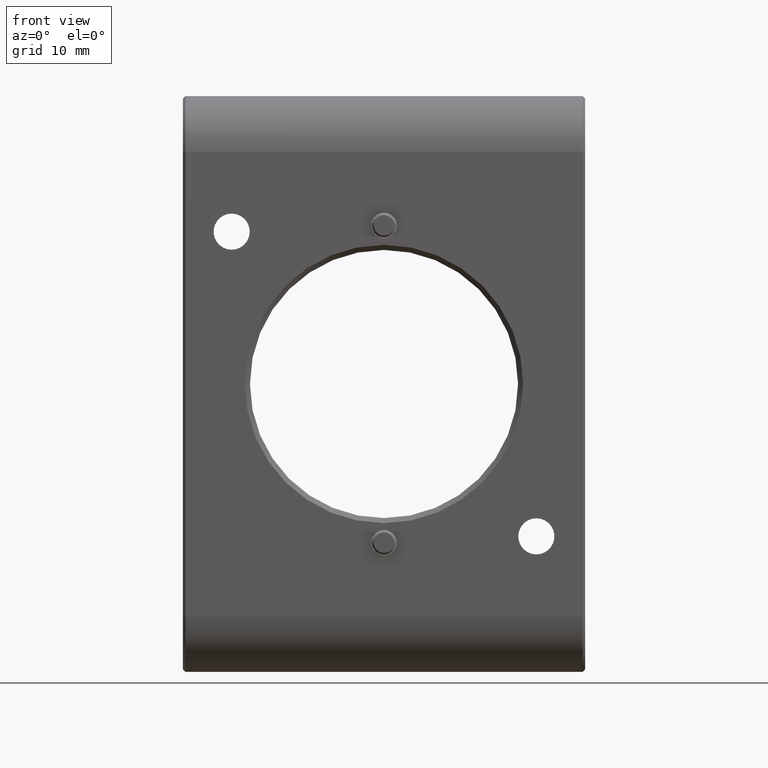
[diagram: clean part render]
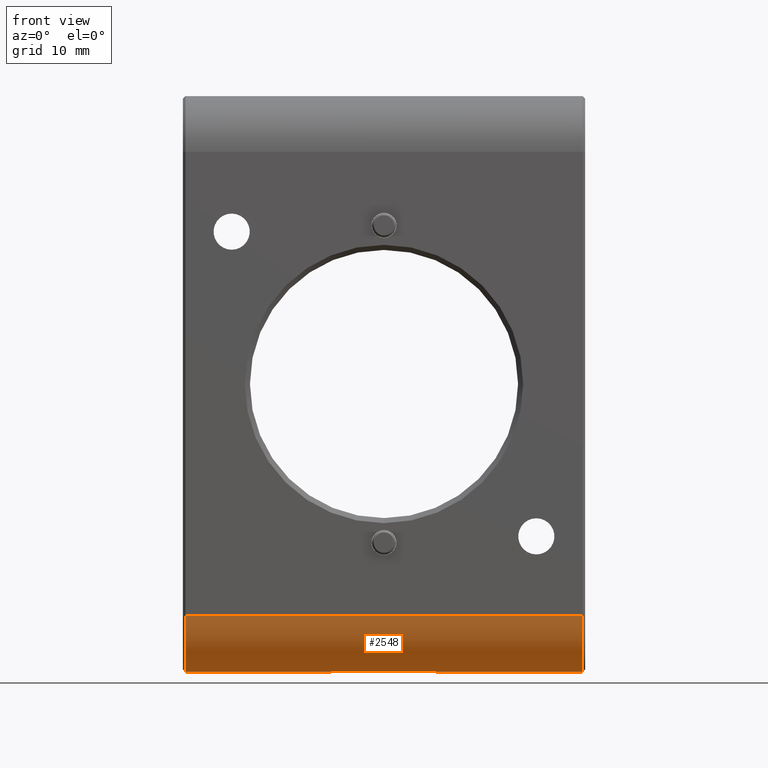
[diagram: same view with one face highlighted and labeled with its STEP entity id]
A machine part, front view. The second image highlights one B-rep face of the part: STEP entity #2548.
In plain terms, the highlighted cylindrical surface (partial cylindrical patch) has radius 5.5 mm, axis along (-1, 0, 0).
Its self-contained STEP definition (entity closure, byte-faithful):
#114 = DIRECTION ( 'NONE',  ( -1.000000000000000000, 0.000000000000000000, 0.000000000000000000 ) ) ;
#314 = VERTEX_POINT ( 'NONE', #8026 ) ;
#323 = CARTESIAN_POINT ( 'NONE',  ( -6.207359312880637248, 5.499999999999994671, -28.35000000000000142 ) ) ;
#507 = CIRCLE ( 'NONE', #5867, 5.499999999999998224 ) ;
#769 = DIRECTION ( 'NONE',  ( 1.000000000000000000, 0.000000000000000000, 0.000000000000000000 ) ) ;
#801 = CARTESIAN_POINT ( 'NONE',  ( -5.387145049533334173, 5.238182899127581393, -28.34376481234797041 ) ) ;
#922 = EDGE_CURVE ( 'NONE', #2642, #1798, #7414, .T. ) ;
#944 = CARTESIAN_POINT ( 'NONE',  ( 19.55000000000000782, -6.175281484700528050E-15, -22.85000000000000142 ) ) ;
#950 = ORIENTED_EDGE ( 'NONE', *, *, #2392, .T. ) ;
#1119 = CARTESIAN_POINT ( 'NONE',  ( -19.55000000000000782, 5.499999999999994671, -28.35000000000000142 ) ) ;
#1197 = VERTEX_POINT ( 'NONE', #3754 ) ;
#1330 = CARTESIAN_POINT ( 'NONE',  ( -19.55000000000000782, 5.499999999999993783, -22.85000000000000142 ) ) ;
#1798 = VERTEX_POINT ( 'NONE', #4909 ) ;
#1858 = CARTESIAN_POINT ( 'NONE',  ( 5.811324315320402611, 5.327141174833858628, -28.35000000000000142 ) ) ;
#1878 = DIRECTION ( 'NONE',  ( 1.000000000000000000, -0.000000000000000000, -0.000000000000000000 ) ) ;
#2010 = DIRECTION ( 'NONE',  ( 0.000000000000000000, 0.000000000000000000, 1.000000000000000000 ) ) ;
#2049 = VERTEX_POINT ( 'NONE', #6511 ) ;
#2153 = CARTESIAN_POINT ( 'NONE',  ( -4.957359312880709190, 5.238095238095239026, -28.34376063327222539 ) ) ;
#2251 = ORIENTED_EDGE ( 'NONE', *, *, #6952, .F. ) ;
#2392 = EDGE_CURVE ( 'NONE', #314, #5233, #4115, .T. ) ;
#2485 = VECTOR ( 'NONE', #5244, 1000.000000000000000 ) ;
#2548 = ADVANCED_FACE ( 'NONE', ( #2827 ), #8588, .T. ) ;
#2555 = EDGE_CURVE ( 'NONE', #4671, #2957, #8159, .T. ) ;
#2613 = EDGE_CURVE ( 'NONE', #2049, #2957, #507, .T. ) ;
#2642 = VERTEX_POINT ( 'NONE', #4684 ) ;
#2827 = FACE_OUTER_BOUND ( 'NONE', #8195, .T. ) ;
#2845 = EDGE_CURVE ( 'NONE', #314, #1798, #3659, .T. ) ;
#2957 = VERTEX_POINT ( 'NONE', #1119 ) ;
#3127 = AXIS2_PLACEMENT_3D ( 'NONE', #6284, #4325, #4986 ) ;
#3210 = CARTESIAN_POINT ( 'NONE',  ( 19.80000000000000071, 5.499999999999994671, -28.35000000000000142 ) ) ;
#3446 = AXIS2_PLACEMENT_3D ( 'NONE', #5407, #114, #2010 ) ;
#3524 = CARTESIAN_POINT ( 'NONE',  ( 19.80000000000000071, 5.499999999999994671, -28.35000000000000142 ) ) ;
#3659 = LINE ( 'NONE', #3524, #5232 ) ;
#3754 = CARTESIAN_POINT ( 'NONE',  ( -4.957359312880709190, 5.238095238095239026, -28.34376063327222539 ) ) ;
#3933 = CARTESIAN_POINT ( 'NONE',  ( 19.80000000000000071, -6.175281484700528050E-15, -22.85000000000000142 ) ) ;
#4115 = CIRCLE ( 'NONE', #3446, 5.499999999999998224 ) ;
#4279 = LINE ( 'NONE', #7314, #2485 ) ;
#4325 = DIRECTION ( 'NONE',  ( -1.000000000000000000, 0.000000000000000000, 0.000000000000000000 ) ) ;
#4656 = DIRECTION ( 'NONE',  ( -1.000000000000000000, 0.000000000000000000, 0.000000000000000000 ) ) ;
#4671 = VERTEX_POINT ( 'NONE', #323 ) ;
#4684 = CARTESIAN_POINT ( 'NONE',  ( 4.957359312880691427, 5.238095238095240802, -28.34376063327222539 ) ) ;
#4687 = CARTESIAN_POINT ( 'NONE',  ( -6.207359312880637248, 5.499999999999994671, -28.35000000000000142 ) ) ;
#4878 = DIRECTION ( 'NONE',  ( -1.000000000000000000, 0.000000000000000000, 0.000000000000000000 ) ) ;
#4909 = CARTESIAN_POINT ( 'NONE',  ( 6.207359312880686097, 5.499999999999994671, -28.35000000000000142 ) ) ;
#4986 = DIRECTION ( 'NONE',  ( 0.000000000000000000, 0.000000000000000000, 1.000000000000000000 ) ) ;
#5048 = VECTOR ( 'NONE', #4656, 1000.000000000000000 ) ;
#5223 = CARTESIAN_POINT ( 'NONE',  ( 4.957359312880691427, 5.238095238095240802, -28.34376063327222539 ) ) ;
#5232 = VECTOR ( 'NONE', #4878, 1000.000000000000000 ) ;
#5233 = VERTEX_POINT ( 'NONE', #944 ) ;
#5244 = DIRECTION ( 'NONE',  ( 1.000000000000000000, -0.000000000000000000, -0.000000000000000000 ) ) ;
#5255 = CARTESIAN_POINT ( 'NONE',  ( 6.207359312880686097, 5.499999999999994671, -28.35000000000000142 ) ) ;
#5266 = EDGE_CURVE ( 'NONE', #1197, #2642, #4279, .T. ) ;
#5407 = CARTESIAN_POINT ( 'NONE',  ( 19.55000000000000782, 5.499999999999993783, -22.85000000000000142 ) ) ;
#5427 = EDGE_CURVE ( 'NONE', #4671, #1197, #6066, .T. ) ;
#5430 = ORIENTED_EDGE ( 'NONE', *, *, #5266, .T. ) ;
#5482 = DIRECTION ( 'NONE',  ( 0.000000000000000000, 0.000000000000000000, 1.000000000000000000 ) ) ;
#5867 = AXIS2_PLACEMENT_3D ( 'NONE', #1330, #769, #5482 ) ;
#5946 = CARTESIAN_POINT ( 'NONE',  ( 5.388392650168335685, 5.238170673061262939, -28.34376422949312513 ) ) ;
#6066 = B_SPLINE_CURVE_WITH_KNOTS ( 'NONE', 3,
 ( #4687, #6112, #801, #2153 ),
 .UNSPECIFIED., .F., .F.,
 ( 4, 4 ),
 ( 0.000000000000000000, 1.000000000000000000 ),
 .UNSPECIFIED. ) ;
#6112 = CARTESIAN_POINT ( 'NONE',  ( -5.810192413863364713, 5.326633706623638886, -28.35000000000000142 ) ) ;
#6284 = CARTESIAN_POINT ( 'NONE',  ( 19.80000000000000071, 5.499999999999993783, -22.85000000000000142 ) ) ;
#6511 = CARTESIAN_POINT ( 'NONE',  ( -19.55000000000000782, -6.175281484700528050E-15, -22.85000000000000142 ) ) ;
#6947 = LINE ( 'NONE', #3933, #7786 ) ;
#6952 = EDGE_CURVE ( 'NONE', #2049, #5233, #6947, .T. ) ;
#7314 = CARTESIAN_POINT ( 'NONE',  ( 19.80000000000000071, 5.238095238095239026, -28.34376063327222539 ) ) ;
#7414 = B_SPLINE_CURVE_WITH_KNOTS ( 'NONE', 3,
 ( #5223, #5946, #1858, #5255 ),
 .UNSPECIFIED., .F., .F.,
 ( 4, 4 ),
 ( 0.000000000000000000, 1.000000000000000000 ),
 .UNSPECIFIED. ) ;
#7730 = ORIENTED_EDGE ( 'NONE', *, *, #5427, .T. ) ;
#7786 = VECTOR ( 'NONE', #1878, 1000.000000000000000 ) ;
#8026 = CARTESIAN_POINT ( 'NONE',  ( 19.55000000000000782, 5.499999999999994671, -28.35000000000000142 ) ) ;
#8159 = LINE ( 'NONE', #3210, #5048 ) ;
#8195 = EDGE_LOOP ( 'NONE', ( #2251, #8514, #8566, #7730, #5430, #8344, #8545, #950 ) ) ;
#8344 = ORIENTED_EDGE ( 'NONE', *, *, #922, .T. ) ;
#8514 = ORIENTED_EDGE ( 'NONE', *, *, #2613, .T. ) ;
#8545 = ORIENTED_EDGE ( 'NONE', *, *, #2845, .F. ) ;
#8566 = ORIENTED_EDGE ( 'NONE', *, *, #2555, .F. ) ;
#8588 = CYLINDRICAL_SURFACE ( 'NONE', #3127, 5.499999999999998224 ) ;